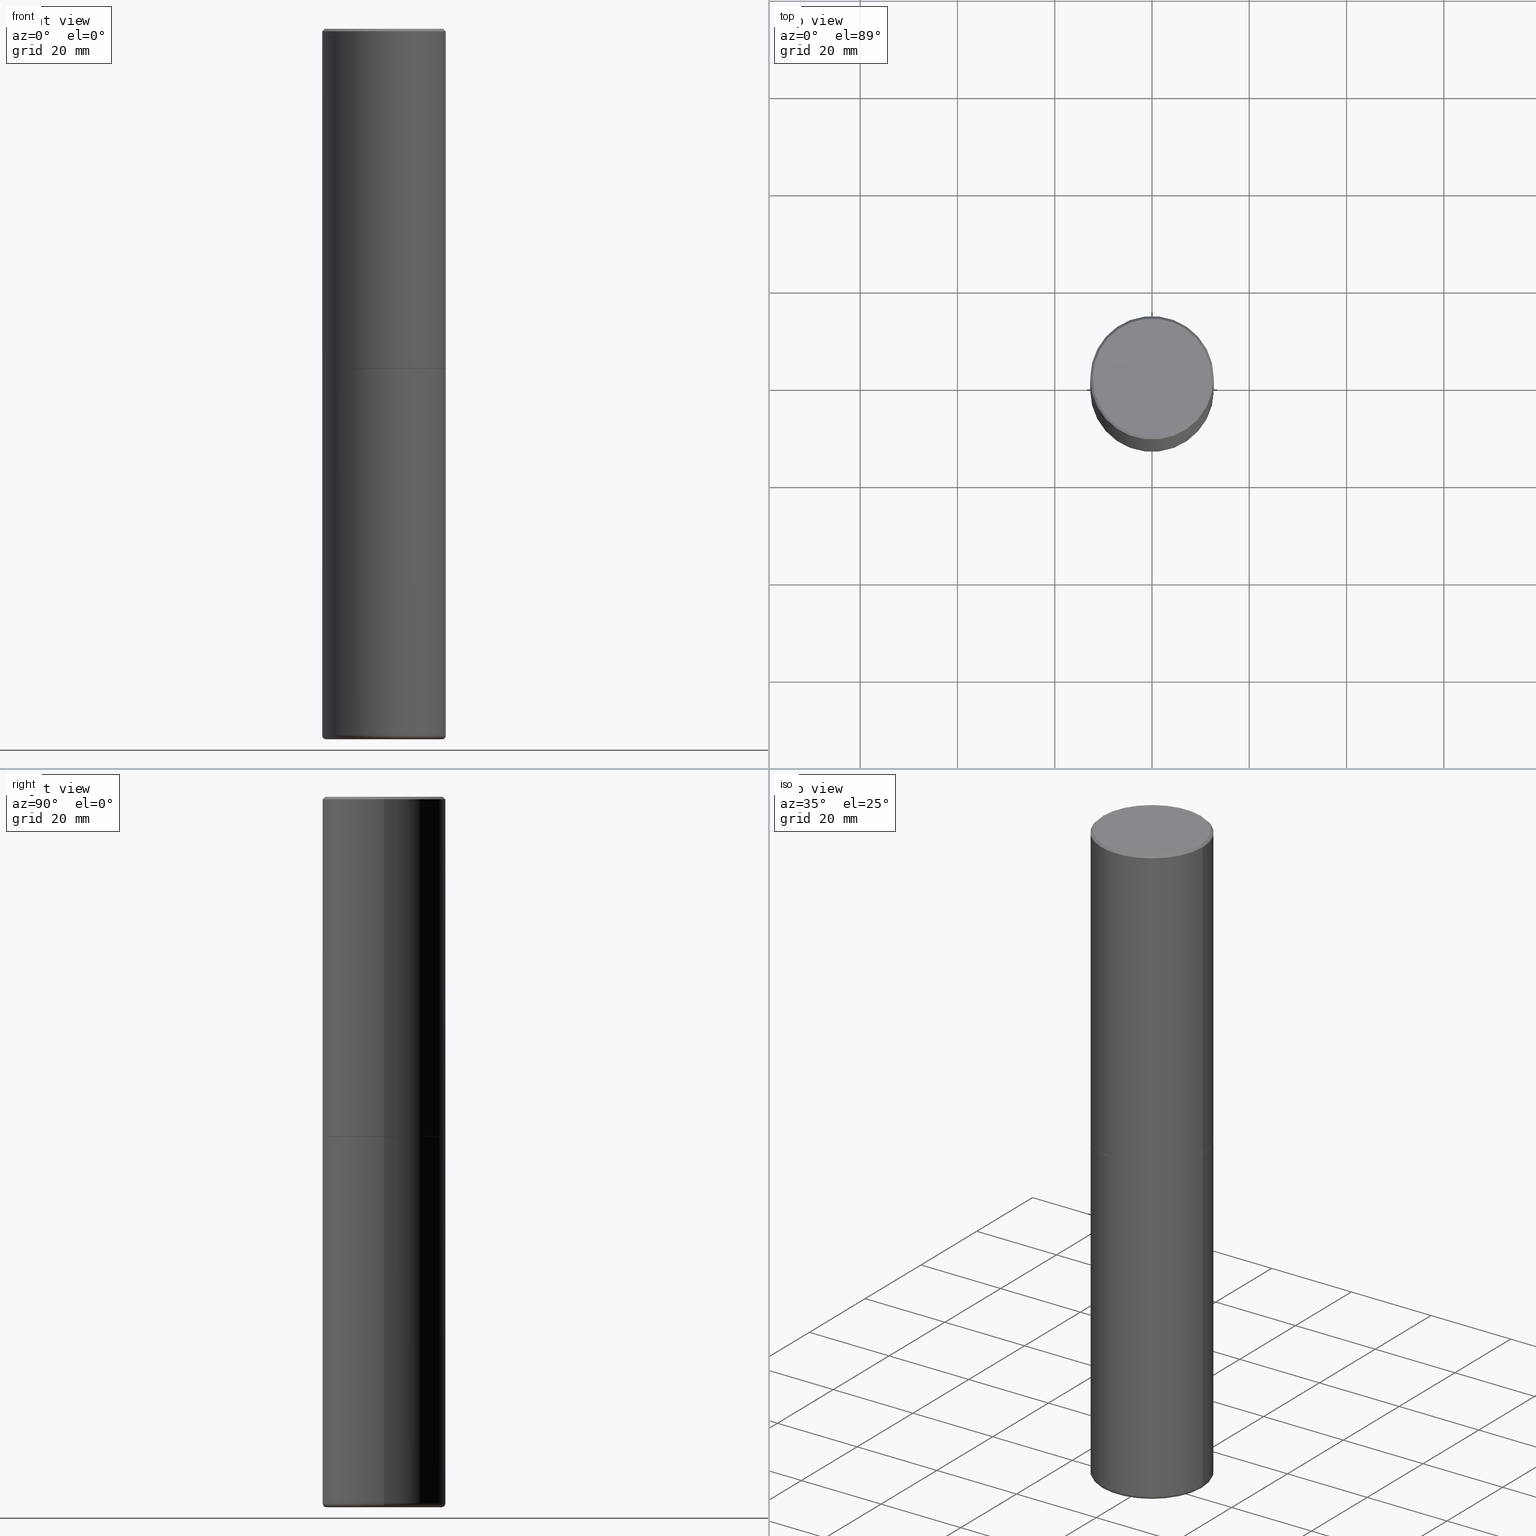
[diagram: canonical four-view strip — front | top / right | iso, engineering-drawing reading convention]
A machine part, canonical four-view strip (front | top / right | iso — engineering-drawing reading convention). The complete STEP part file that produces these views, byte-faithful:
ISO-10303-21;
HEADER;
FILE_DESCRIPTION (( 'STEP AP203' ),
    '1' );
FILE_NAME ('77313.STEP',
    '2024-03-06T17:01:20',
    ( '' ),
    ( '' ),
    'SwSTEP 2.0',
    'SolidWorks 2023',
    '' );
FILE_SCHEMA (( 'CONFIG_CONTROL_DESIGN' ));
ENDSEC;

DATA;
#1 = DIRECTION ( 'NONE',  ( 7.105427357601001859E-15, 1.000000000000000000, -3.491481338843145583E-15 ) ) ;
#2 = ORIENTED_EDGE ( 'NONE', *, *, #356, .F. ) ;
#3 = FACE_OUTER_BOUND ( 'NONE', #270, .T. ) ;
#4 = EDGE_LOOP ( 'NONE', ( #97, #313, #187, #124 ) ) ;
#5 = CIRCLE ( 'NONE', #96, 0.4699999999999999734 ) ;
#6 = ORIENTED_EDGE ( 'NONE', *, *, #139, .F. ) ;
#7 = LINE ( 'NONE', #235, #367 ) ;
#8 = EDGE_CURVE ( 'NONE', #60, #394, #221, .T. ) ;
#9 = AXIS2_PLACEMENT_3D ( 'NONE', #278, #386, #315 ) ;
#10 = AXIS2_PLACEMENT_3D ( 'NONE', #169, #73, #200 ) ;
#11 = CARTESIAN_POINT ( 'NONE',  ( 0.000000000000000000, 0.000000000000000000, 0.000000000000000000 ) ) ;
#12 = CARTESIAN_POINT ( 'NONE',  ( 1.406144563556453319E-28, -2.007601769834808306E-14, -5.749999999999998224 ) ) ;
#13 = DIRECTION ( 'NONE',  ( 1.000000000000000000, -6.982962677686271444E-15, 0.000000000000000000 ) ) ;
#14 = ADVANCED_FACE ( 'NONE', ( #3 ), #255, .F. ) ;
#15 = CIRCLE ( 'NONE', #195, 0.4699999999999999734 ) ;
#16 = PRODUCT_DEFINITION_FORMATION_WITH_SPECIFIED_SOURCE ( 'ANY', '', #377, .NOT_KNOWN. ) ;
#17 = CARTESIAN_POINT ( 'NONE',  ( 6.722593748202938917E-29, -9.598082200479805274E-15, -2.748999999999999666 ) ) ;
#18 = MANIFOLD_SOLID_BREP ( 'Body-Move/Copy2[2]', #111 ) ;
#19 = APPROVAL_DATE_TIME ( #150, #171 ) ;
#20 = VECTOR ( 'NONE', #117, 39.37007874015748143 ) ;
#21 = DATE_AND_TIME ( #121, #227 ) ;
#22 = DATE_TIME_ROLE ( 'creation_date' ) ;
#23 = ORIENTED_EDGE ( 'NONE', *, *, #296, .T. ) ;
#24 = CARTESIAN_POINT ( 'NONE',  ( -0.5000000000000000000, 3.552713678800500929E-15, -2.459467545127452891E-29 ) ) ;
#25 = DIRECTION ( 'NONE',  ( 2.445468806185136597E-29, -3.491481338843145583E-15, -1.000000000000000000 ) ) ;
#26 = PERSON_AND_ORGANIZATION_ROLE ( 'creator' ) ;
#27 = AXIS2_PLACEMENT_3D ( 'NONE', #401, #294, #231 ) ;
#28 = CALENDAR_DATE ( 2024, 6, 3 ) ;
#29 = CARTESIAN_POINT ( 'NONE',  ( 0.4699999999999999734, -2.325326571669532999E-14, -5.719999999999998863 ) ) ;
#30 = ORIENTED_EDGE ( 'NONE', *, *, #403, .T. ) ;
#31 = PRODUCT_RELATED_PRODUCT_CATEGORY ( 'detail', '', ( #377 ) ) ;
#32 = ORIENTED_EDGE ( 'NONE', *, *, #415, .F. ) ;
#33 = EDGE_LOOP ( 'NONE', ( #51, #340, #366, #45 ) ) ;
#34 = AXIS2_PLACEMENT_3D ( 'NONE', #236, #408, #373 ) ;
#35 = DIRECTION ( 'NONE',  ( 1.000000000000000000, -6.982962677686265922E-15, 0.000000000000000000 ) ) ;
#36 = PERSON_AND_ORGANIZATION ( #166, #90 ) ;
#37 = EDGE_CURVE ( 'NONE', #360, #382, #353, .T. ) ;
#38 = AXIS2_PLACEMENT_3D ( 'NONE', #230, #43, #297 ) ;
#39 = VECTOR ( 'NONE', #244, 39.37007874015748143 ) ;
#40 = DIRECTION ( 'NONE',  ( -2.445468806185136877E-29, 3.491481338843145188E-15, 1.000000000000000000 ) ) ;
#41 = DIRECTION ( 'NONE',  ( 1.000000000000000000, -6.982962677686266711E-15, 4.883557194083112901E-29 ) ) ;
#42 = CARTESIAN_POINT ( 'NONE',  ( 0.000000000000000000, 0.000000000000000000, 0.000000000000000000 ) ) ;
#43 = DIRECTION ( 'NONE',  ( -2.445468806185136597E-29, 3.491481338843145583E-15, 1.000000000000000000 ) ) ;
#44 = ADVANCED_FACE ( 'NONE', ( #289 ), #138, .T. ) ;
#45 = ORIENTED_EDGE ( 'NONE', *, *, #92, .F. ) ;
#46 = ORIENTED_EDGE ( 'NONE', *, *, #232, .F. ) ;
#47 =( GEOMETRIC_REPRESENTATION_CONTEXT ( 3 ) GLOBAL_UNCERTAINTY_ASSIGNED_CONTEXT ( ( #222 ) ) GLOBAL_UNIT_ASSIGNED_CONTEXT ( ( #327, #359, #238 ) ) REPRESENTATION_CONTEXT ( 'NONE', 'WORKASPACE' ) );
#48 = CARTESIAN_POINT ( 'NONE',  ( -0.4989999999999999991, -6.050666976027525169E-15, -2.749999999999999556 ) ) ;
#49 = CARTESIAN_POINT ( 'NONE',  ( 0.5000000000000002220, -3.491481338843134933E-15, 2.438088387897969017E-29 ) ) ;
#50 = DIRECTION ( 'NONE',  ( -2.445468806185136597E-29, 3.491481338843145583E-15, 1.000000000000000000 ) ) ;
#51 = ORIENTED_EDGE ( 'NONE', *, *, #403, .F. ) ;
#52 = AXIS2_PLACEMENT_3D ( 'NONE', #53, #147, #174 ) ;
#53 = CARTESIAN_POINT ( 'NONE',  ( 1.398808157137897855E-28, -1.997127325818278653E-14, -5.719999999999998863 ) ) ;
#54 = VERTEX_POINT ( 'NONE', #333 ) ;
#55 = CARTESIAN_POINT ( 'NONE',  ( 6.725039217009123399E-29, -9.601573681818648281E-15, -2.749999999999999556 ) ) ;
#56 = CALENDAR_DATE ( 2024, 6, 3 ) ;
#57 = CARTESIAN_POINT ( 'NONE',  ( 0.4989999999999999991, -1.308607205798409720E-14, -2.749999999999999556 ) ) ;
#58 = VERTEX_POINT ( 'NONE', #365 ) ;
#59 = EDGE_CURVE ( 'NONE', #136, #394, #338, .T. ) ;
#60 = VERTEX_POINT ( 'NONE', #105 ) ;
#61 = ORIENTED_EDGE ( 'NONE', *, *, #8, .T. ) ;
#62 = ORIENTED_EDGE ( 'NONE', *, *, #309, .T. ) ;
#63 = ORIENTED_EDGE ( 'NONE', *, *, #186, .F. ) ;
#64 = DIRECTION ( 'NONE',  ( 0.7071067811867406405, -2.468850131084279700E-15, 0.7071067811863543939 ) ) ;
#65 = EDGE_CURVE ( 'NONE', #132, #347, #15, .T. ) ;
#66 = AXIS2_PLACEMENT_3D ( 'NONE', #102, #295, #369 ) ;
#67 = CC_DESIGN_APPROVAL ( #252, ( #16 ) ) ;
#68 = DIRECTION ( 'NONE',  ( -2.445468806185136597E-29, 3.491481338843145583E-15, 1.000000000000000000 ) ) ;
#69 = LOCAL_TIME ( 12, 1, 20.00000000000000000, #146 ) ;
#70 = CC_DESIGN_PERSON_AND_ORGANIZATION_ASSIGNMENT ( #312, #26, ( #16 ) ) ;
#71 = DIRECTION ( 'NONE',  ( -2.445468806185136597E-29, 3.491481338843145583E-15, 1.000000000000000000 ) ) ;
#72 = ORIENTED_EDGE ( 'NONE', *, *, #229, .F. ) ;
#73 = DIRECTION ( 'NONE',  ( 2.438088387897960049E-29, -3.491481338843145188E-15, -1.000000000000000000 ) ) ;
#74 = CC_DESIGN_PERSON_AND_ORGANIZATION_ASSIGNMENT ( #87, #385, ( #383 ) ) ;
#75 = DESIGN_CONTEXT ( 'detailed design', #361, 'design' ) ;
#76 = VECTOR ( 'NONE', #79, 39.37007874015748143 ) ;
#77 = DIRECTION ( 'NONE',  ( -2.445468806185136597E-29, 3.491481338843145583E-15, 1.000000000000000000 ) ) ;
#78 = EDGE_LOOP ( 'NONE', ( #345, #30, #32, #72 ) ) ;
#79 = DIRECTION ( 'NONE',  ( -0.7071067811867406405, 7.493145998871051513E-15, 0.7071067811863543939 ) ) ;
#80 = DIRECTION ( 'NONE',  ( -2.438088387897960049E-29, 3.491481338843145188E-15, 1.000000000000000000 ) ) ;
#81 = CARTESIAN_POINT ( 'NONE',  ( -0.5000000000000001110, 3.421651712066270452E-15, -0.02000000000000010797 ) ) ;
#82 = VERTEX_POINT ( 'NONE', #268 ) ;
#83 = EDGE_CURVE ( 'NONE', #54, #156, #135, .T. ) ;
#84 = AXIS2_PLACEMENT_3D ( 'NONE', #17, #348, #301 ) ;
#85 = DIRECTION ( 'NONE',  ( -2.445468806185136597E-29, 3.491481338843145583E-15, 1.000000000000000000 ) ) ;
#86 = DATE_AND_TIME ( #176, #388 ) ;
#87 = PERSON_AND_ORGANIZATION ( #166, #90 ) ;
#88 = VERTEX_POINT ( 'NONE', #162 ) ;
#89 = CIRCLE ( 'NONE', #331, 0.02999999999999974909 ) ;
#90 = ORGANIZATION ( 'UNSPECIFIED', 'UNSPECIFIED', '' ) ;
#91 = CC_DESIGN_SECURITY_CLASSIFICATION ( #293, ( #16 ) ) ;
#92 = EDGE_CURVE ( 'NONE', #82, #418, #179, .T. ) ;
#93 = ORIENTED_EDGE ( 'NONE', *, *, #116, .F. ) ;
#94 = APPROVAL_ROLE ( '' ) ;
#95 = ORIENTED_EDGE ( 'NONE', *, *, #59, .T. ) ;
#96 = AXIS2_PLACEMENT_3D ( 'NONE', #349, #302, #341 ) ;
#97 = ORIENTED_EDGE ( 'NONE', *, *, #296, .F. ) ;
#98 = CARTESIAN_POINT ( 'NONE',  ( 0.000000000000000000, 0.000000000000000000, 0.000000000000000000 ) ) ;
#99 = CYLINDRICAL_SURFACE ( 'NONE', #153, 0.5000000000000000000 ) ;
#100 = FACE_OUTER_BOUND ( 'NONE', #260, .T. ) ;
#101 = ADVANCED_FACE ( 'NONE', ( #198 ), #298, .T. ) ;
#102 = CARTESIAN_POINT ( 'NONE',  ( 4.890937612370299433E-31, -6.982962677686328587E-17, -0.02000000000000010797 ) ) ;
#103 = CLOSED_SHELL ( 'NONE', ( #336, #101, #390, #44, #285, #192 ) ) ;
#104 = AXIS2_PLACEMENT_3D ( 'NONE', #131, #108, #258 ) ;
#105 = CARTESIAN_POINT ( 'NONE',  ( 0.4999999999999998335, -2.346275459702591989E-14, -5.719999999999998863 ) ) ;
#106 = FACE_OUTER_BOUND ( 'NONE', #371, .T. ) ;
#107 = ADVANCED_FACE ( 'NONE', ( #100 ), #395, .T. ) ;
#108 = DIRECTION ( 'NONE',  ( -2.445468806185136597E-29, 3.491481338843145583E-15, 1.000000000000000000 ) ) ;
#109 = LINE ( 'NONE', #280, #76 ) ;
#110 = DIRECTION ( 'NONE',  ( 0.000000000000000000, 0.000000000000000000, 1.000000000000000000 ) ) ;
#111 = CLOSED_SHELL ( 'NONE', ( #107, #214, #175, #363, #163, #267, #352, #14 ) ) ;
#112 = LINE ( 'NONE', #81, #299 ) ;
#113 = PERSON_AND_ORGANIZATION ( #166, #90 ) ;
#114 = CARTESIAN_POINT ( 'NONE',  ( 6.725039217009123399E-29, -9.601573681818648281E-15, -2.749999999999999556 ) ) ;
#115 = DIRECTION ( 'NONE',  ( 1.000000000000000000, -6.982962677686269077E-15, 0.000000000000000000 ) ) ;
#116 = EDGE_CURVE ( 'NONE', #60, #148, #226, .T. ) ;
#117 = DIRECTION ( 'NONE',  ( -2.445468806185136877E-29, 3.491481338843145188E-15, 1.000000000000000000 ) ) ;
#118 = ORIENTED_EDGE ( 'NONE', *, *, #92, .T. ) ;
#119 = APPROVAL_ROLE ( '' ) ;
#120 = APPROVAL ( #210, 'UNSPECIFIED' ) ;
#121 = CALENDAR_DATE ( 2024, 6, 3 ) ;
#122 = ORIENTED_EDGE ( 'NONE', *, *, #65, .F. ) ;
#123 = CARTESIAN_POINT ( 'NONE',  ( 0.4799999999999999267, -3.396558832296482099E-15, 1.195183497228351200E-16 ) ) ;
#124 = ORIENTED_EDGE ( 'NONE', *, *, #309, .F. ) ;
#125 = EDGE_LOOP ( 'NONE', ( #307, #223, #6, #355 ) ) ;
#126 = CONICAL_SURFACE ( 'NONE', #316, 0.4989999999999999991, 0.7853981633977213939 ) ;
#127 = ORIENTED_EDGE ( 'NONE', *, *, #149, .F. ) ;
#128 = ORIENTED_EDGE ( 'NONE', *, *, #158, .F. ) ;
#129 = LINE ( 'NONE', #57, #211 ) ;
#130 = CC_DESIGN_PERSON_AND_ORGANIZATION_ASSIGNMENT ( #154, #281, ( #293 ) ) ;
#131 = CARTESIAN_POINT ( 'NONE',  ( 4.890937612370299433E-31, -6.982962677686328587E-17, -0.02000000000000010797 ) ) ;
#132 = VERTEX_POINT ( 'NONE', #216 ) ;
#133 = CARTESIAN_POINT ( 'NONE',  ( 2.339670157939436804E-28, -6.707399857012327486E-15, -5.749999999999998224 ) ) ;
#134 = CARTESIAN_POINT ( 'NONE',  ( 3.351822085289407153E-15, 0.4799999999999999267, -1.616151867783303914E-15 ) ) ;
#135 = CIRCLE ( 'NONE', #247, 0.4799999999999999267 ) ;
#136 = VERTEX_POINT ( 'NONE', #178 ) ;
#137 = CONICAL_SURFACE ( 'NONE', #339, 0.5000000000000001110, 0.7853981633974458365 ) ;
#138 = CYLINDRICAL_SURFACE ( 'NONE', #407, 0.5000000000000000000 ) ;
#139 = EDGE_CURVE ( 'NONE', #394, #136, #372, .T. ) ;
#140 = DIRECTION ( 'NONE',  ( 1.000000000000000000, -6.982962677686266711E-15, 4.876176775795935793E-29 ) ) ;
#141 = DIRECTION ( 'NONE',  ( -2.445468806185136597E-29, 3.491481338843145583E-15, 1.000000000000000000 ) ) ;
#142 = LOCAL_TIME ( 12, 1, 20.00000000000000000, #225 ) ;
#143 = CARTESIAN_POINT ( 'NONE',  ( -0.4699999999999999734, -1.657751320982894820E-14, -5.749999999999998224 ) ) ;
#144 = APPLICATION_PROTOCOL_DEFINITION ( 'international standard', 'config_control_design', 1994, #361 ) ;
#145 = FACE_OUTER_BOUND ( 'NONE', #397, .T. ) ;
#146 = COORDINATED_UNIVERSAL_TIME_OFFSET ( 5, 0, .BEHIND. ) ;
#147 = DIRECTION ( 'NONE',  ( -2.445468806185136597E-29, 3.491481338843145583E-15, 1.000000000000000000 ) ) ;
#148 = VERTEX_POINT ( 'NONE', #151 ) ;
#149 = EDGE_CURVE ( 'NONE', #132, #60, #237, .T. ) ;
#150 = DATE_AND_TIME ( #56, #142 ) ;
#151 = CARTESIAN_POINT ( 'NONE',  ( -0.4999999999999998335, -1.641855957938228876E-14, -5.719999999999998863 ) ) ;
#152 = EDGE_CURVE ( 'NONE', #347, #148, #89, .T. ) ;
#153 = AXIS2_PLACEMENT_3D ( 'NONE', #206, #77, #411 ) ;
#154 = PERSON_AND_ORGANIZATION ( #166, #90 ) ;
#155 = DIRECTION ( 'NONE',  ( 1.000000000000000000, -6.982962677686326664E-15, 0.000000000000000000 ) ) ;
#156 = VERTEX_POINT ( 'NONE', #123 ) ;
#157 = DIRECTION ( 'NONE',  ( 1.000000000000000000, -6.982962677686269077E-15, 0.000000000000000000 ) ) ;
#158 = EDGE_CURVE ( 'NONE', #88, #58, #189, .T. ) ;
#159 = DIRECTION ( 'NONE',  ( 1.000000000000000000, 0.000000000000000000, 0.000000000000000000 ) ) ;
#160 = MANIFOLD_SOLID_BREP ( 'Body-Move/Copy2[1]', #103 ) ;
#161 = DIRECTION ( 'NONE',  ( -2.445468806185136597E-29, 3.491481338843145583E-15, 1.000000000000000000 ) ) ;
#162 = CARTESIAN_POINT ( 'NONE',  ( 0.5000000000000003331, -1.308956353932294179E-14, -2.748999999999999666 ) ) ;
#163 = ADVANCED_FACE ( 'NONE', ( #190 ), #335, .T. ) ;
#164 = ORIENTED_EDGE ( 'NONE', *, *, #37, .F. ) ;
#165 = CIRCLE ( 'NONE', #34, 0.4799999999999999267 ) ;
#166 = PERSON ( 'UNSPECIFIED', 'UNSPECIFIED', 'UNSPECIFIED', ('UNSPECIFIED'), ('UNSPECIFIED'), ('UNSPECIFIED') ) ;
#167 = PLANE ( 'NONE',  #282 ) ;
#168 = ORIENTED_EDGE ( 'NONE', *, *, #410, .F. ) ;
#169 = CARTESIAN_POINT ( 'NONE',  ( 6.725039217009123399E-29, -9.601573681818648281E-15, -2.749999999999999556 ) ) ;
#170 = APPROVAL_STATUS ( 'not_yet_approved' ) ;
#171 = APPROVAL ( #393, 'UNSPECIFIED' ) ;
#172 = PERSON_AND_ORGANIZATION ( #166, #90 ) ;
#173 = AXIS2_PLACEMENT_3D ( 'NONE', #277, #85, #213 ) ;
#174 = DIRECTION ( 'NONE',  ( 1.000000000000000000, -6.982962677686266711E-15, 4.883557194083112901E-29 ) ) ;
#175 = ADVANCED_FACE ( 'NONE', ( #402 ), #137, .T. ) ;
#176 = CALENDAR_DATE ( 2024, 6, 3 ) ;
#177 = EDGE_CURVE ( 'NONE', #156, #418, #304, .T. ) ;
#178 = CARTESIAN_POINT ( 'NONE',  ( -0.5000000000000000000, -1.123370979120021648E-14, -2.749999999999999556 ) ) ;
#179 = CIRCLE ( 'NONE', #66, 0.5000000000000001110 ) ;
#180 = TOROIDAL_SURFACE ( 'NONE', #52, 0.4699999999999999734, 0.02999999999999974909 ) ;
#181 = EDGE_LOOP ( 'NONE', ( #164, #188 ) ) ;
#182 = DIRECTION ( 'NONE',  ( -1.000000000000000000, 6.982962677686265922E-15, -4.876176775795935793E-29 ) ) ;
#183 = ORIENTED_EDGE ( 'NONE', *, *, #65, .T. ) ;
#184 = CARTESIAN_POINT ( 'NONE',  ( 0.5000000000000000000, -3.491481338843133355E-15, 2.438088387897967896E-29 ) ) ;
#185 = EDGE_LOOP ( 'NONE', ( #334, #219, #62, #118 ) ) ;
#186 = EDGE_CURVE ( 'NONE', #360, #88, #129, .T. ) ;
#187 = ORIENTED_EDGE ( 'NONE', *, *, #415, .T. ) ;
#188 = ORIENTED_EDGE ( 'NONE', *, *, #330, .F. ) ;
#189 = CIRCLE ( 'NONE', #322, 0.5000000000000003331 ) ;
#190 = FACE_OUTER_BOUND ( 'NONE', #33, .T. ) ;
#191 = DIRECTION ( 'NONE',  ( -2.445468806185136597E-29, 3.491481338843145583E-15, 1.000000000000000000 ) ) ;
#192 = ADVANCED_FACE ( 'NONE', ( #257 ), #392, .T. ) ;
#193 = ORIENTED_EDGE ( 'NONE', *, *, #259, .F. ) ;
#194 = DIRECTION ( 'NONE',  ( -2.445468806185136597E-29, 3.491481338843145583E-15, 1.000000000000000000 ) ) ;
#195 = AXIS2_PLACEMENT_3D ( 'NONE', #12, #141, #13 ) ;
#196 = CC_DESIGN_APPROVAL ( #120, ( #293 ) ) ;
#197 = APPLICATION_CONTEXT ( 'configuration controlled 3d designs of mechanical parts and assemblies' ) ;
#198 = FACE_OUTER_BOUND ( 'NONE', #391, .T. ) ;
#199 = CC_DESIGN_DATE_AND_TIME_ASSIGNMENT ( #344, #22, ( #383 ) ) ;
#200 = DIRECTION ( 'NONE',  ( -1.000000000000000000, 6.982962677686265922E-15, -4.876176775795935793E-29 ) ) ;
#201 =( LENGTH_UNIT ( ) NAMED_UNIT ( * ) SI_UNIT ( $, .METRE. ) );
#202 = EDGE_LOOP ( 'NONE', ( #314, #400, #287, #2 ) ) ;
#203 = CARTESIAN_POINT ( 'NONE',  ( 0.4989999999999999991, -1.308607205798409720E-14, -2.749999999999999556 ) ) ;
#204 = APPROVAL_DATE_TIME ( #217, #252 ) ;
#205 = CARTESIAN_POINT ( 'NONE',  ( 6.722593748202938917E-29, -9.598082200479805274E-15, -2.748999999999999666 ) ) ;
#206 = CARTESIAN_POINT ( 'NONE',  ( 0.000000000000000000, 0.000000000000000000, 0.000000000000000000 ) ) ;
#207 = CARTESIAN_POINT ( 'NONE',  ( 6.725039217009123399E-29, -9.601573681818648281E-15, -2.749999999999999556 ) ) ;
#208 = CARTESIAN_POINT ( 'NONE',  ( 4.890937612370299433E-31, -6.982962677686328587E-17, -0.02000000000000010797 ) ) ;
#209 = LINE ( 'NONE', #49, #20 ) ;
#210 = APPROVAL_STATUS ( 'not_yet_approved' ) ;
#211 = VECTOR ( 'NONE', #64, 39.37007874015748143 ) ;
#212 = FACE_OUTER_BOUND ( 'NONE', #185, .T. ) ;
#213 = DIRECTION ( 'NONE',  ( 1.000000000000000000, -6.982962677686266711E-15, 4.876176775795935793E-29 ) ) ;
#214 = ADVANCED_FACE ( 'NONE', ( #318 ), #370, .T. ) ;
#215 = DATE_TIME_ROLE ( 'classification_date' ) ;
#216 = CARTESIAN_POINT ( 'NONE',  ( 0.4699999999999999734, -2.335801015686062967E-14, -5.749999999999998224 ) ) ;
#217 = DATE_AND_TIME ( #28, #69 ) ;
#218 = DIRECTION ( 'NONE',  ( -6.982962677686266711E-15, -1.000000000000000000, 3.491481338843145583E-15 ) ) ;
#219 = ORIENTED_EDGE ( 'NONE', *, *, #83, .F. ) ;
#220 = AXIS2_PLACEMENT_3D ( 'NONE', #290, #300, #272 ) ;
#221 = LINE ( 'NONE', #184, #253 ) ;
#222 = UNCERTAINTY_MEASURE_WITH_UNIT (LENGTH_MEASURE( 1.000000000000000082E-05 ), #327, 'distance_accuracy_value', 'NONE');
#223 = ORIENTED_EDGE ( 'NONE', *, *, #259, .T. ) ;
#224 = EDGE_LOOP ( 'NONE', ( #193, #319, #61, #350 ) ) ;
#225 = COORDINATED_UNIVERSAL_TIME_OFFSET ( 5, 0, .BEHIND. ) ;
#226 = CIRCLE ( 'NONE', #262, 0.5000000000000001110 ) ;
#227 = LOCAL_TIME ( 12, 1, 20.00000000000000000, #351 ) ;
#228 = EDGE_LOOP ( 'NONE', ( #122, #46 ) ) ;
#229 = EDGE_CURVE ( 'NONE', #88, #418, #209, .T. ) ;
#230 = CARTESIAN_POINT ( 'NONE',  ( 6.725039217009123399E-29, -9.601573681818648281E-15, -2.749999999999999556 ) ) ;
#231 = DIRECTION ( 'NONE',  ( 1.000000000000000000, -6.982962677686269077E-15, 0.000000000000000000 ) ) ;
#232 = EDGE_CURVE ( 'NONE', #347, #132, #5, .T. ) ;
#233 = CARTESIAN_POINT ( 'NONE',  ( -2.922783960138615261E-45, 4.172960877065252270E-31, 1.195183497228115035E-16 ) ) ;
#234 = PLANE ( 'NONE',  #10 ) ;
#235 = CARTESIAN_POINT ( 'NONE',  ( -0.5000000000000002220, 3.552713678800502507E-15, -2.459467545127454012E-29 ) ) ;
#236 = CARTESIAN_POINT ( 'NONE',  ( -2.922783960138615261E-45, 4.172960877065252270E-31, 1.195183497228115035E-16 ) ) ;
#237 = CIRCLE ( 'NONE', #273, 0.02999999999999974909 ) ;
#238 =( NAMED_UNIT ( * ) SI_UNIT ( $, .STERADIAN. ) SOLID_ANGLE_UNIT ( ) );
#239 = DIRECTION ( 'NONE',  ( -0.7071067811865457964, 2.468850131082238917E-15, -0.7071067811865492381 ) ) ;
#240 = CARTESIAN_POINT ( 'NONE',  ( 4.890937612370299433E-31, -6.982962677686328587E-17, -0.02000000000000010797 ) ) ;
#241 = APPROVAL_DATE_TIME ( #86, #120 ) ;
#242 = DIRECTION ( 'NONE',  ( -1.000000000000000000, 7.105427357600985293E-15, 0.000000000000000000 ) ) ;
#243 = APPROVAL_ROLE ( '' ) ;
#244 = DIRECTION ( 'NONE',  ( -2.445468806185136877E-29, 3.491481338843145188E-15, 1.000000000000000000 ) ) ;
#245 = DIRECTION ( 'NONE',  ( 0.7071067811865457964, -7.319954787623249734E-15, -0.7071067811865492381 ) ) ;
#246 = COORDINATED_UNIVERSAL_TIME_OFFSET ( 5, 0, .BEHIND. ) ;
#247 = AXIS2_PLACEMENT_3D ( 'NONE', #233, #362, #399 ) ;
#248 = APPROVAL_PERSON_ORGANIZATION ( #283, #252, #119 ) ;
#249 = PRODUCT_DEFINITION_SHAPE ( 'NONE', 'NONE',  #383 ) ;
#250 = ORIENTED_EDGE ( 'NONE', *, *, #256, .T. ) ;
#251 = DIRECTION ( 'NONE',  ( 1.000000000000000000, -6.982962677686269077E-15, 0.000000000000000000 ) ) ;
#252 = APPROVAL ( #170, 'UNSPECIFIED' ) ;
#253 = VECTOR ( 'NONE', #320, 39.37007874015748143 ) ;
#254 = CC_DESIGN_APPROVAL ( #171, ( #383 ) ) ;
#255 = PLANE ( 'NONE',  #380 ) ;
#256 = EDGE_CURVE ( 'NONE', #382, #58, #109, .T. ) ;
#257 = FACE_OUTER_BOUND ( 'NONE', #228, .T. ) ;
#258 = DIRECTION ( 'NONE',  ( 1.000000000000000000, -6.982962677686265922E-15, 0.000000000000000000 ) ) ;
#259 = EDGE_CURVE ( 'NONE', #148, #136, #343, .T. ) ;
#260 = EDGE_LOOP ( 'NONE', ( #368, #250, #128, #63 ) ) ;
#261 = PERSON_AND_ORGANIZATION ( #166, #90 ) ;
#262 = AXIS2_PLACEMENT_3D ( 'NONE', #265, #71, #251 ) ;
#263 = CIRCLE ( 'NONE', #104, 0.5000000000000001110 ) ;
#264 = LENGTH_MEASURE_WITH_UNIT ( LENGTH_MEASURE( 0.02539999999999999897 ), #201 );
#265 = CARTESIAN_POINT ( 'NONE',  ( 1.398808157137897855E-28, -1.997127325818278653E-14, -5.719999999999998863 ) ) ;
#266 = ORIENTED_EDGE ( 'NONE', *, *, #83, .T. ) ;
#267 = ADVANCED_FACE ( 'NONE', ( #416 ), #126, .T. ) ;
#268 = CARTESIAN_POINT ( 'NONE',  ( -0.5000000000000001110, 3.421651712066270452E-15, -0.02000000000000010797 ) ) ;
#269 = AXIS2_PLACEMENT_3D ( 'NONE', #42, #50, #140 ) ;
#270 = EDGE_LOOP ( 'NONE', ( #266, #23 ) ) ;
#271 = CC_DESIGN_PERSON_AND_ORGANIZATION_ASSIGNMENT ( #172, #384, ( #16 ) ) ;
#272 = DIRECTION ( 'NONE',  ( 1.000000000000000000, -6.982962677686269077E-15, 0.000000000000000000 ) ) ;
#273 = AXIS2_PLACEMENT_3D ( 'NONE', #29, #218, #155 ) ;
#274 = SECURITY_CLASSIFICATION_LEVEL ( 'unclassified' ) ;
#275 = CIRCLE ( 'NONE', #305, 0.4989999999999999991 ) ;
#276 = DIRECTION ( 'NONE',  ( -2.445468806185136597E-29, 3.491481338843145583E-15, 1.000000000000000000 ) ) ;
#277 = CARTESIAN_POINT ( 'NONE',  ( 0.000000000000000000, 0.000000000000000000, 0.000000000000000000 ) ) ;
#278 = CARTESIAN_POINT ( 'NONE',  ( 6.725039217009123399E-29, -9.601573681818648281E-15, -2.749999999999999556 ) ) ;
#279 = CC_DESIGN_PERSON_AND_ORGANIZATION_ASSIGNMENT ( #261, #323, ( #377 ) ) ;
#280 = CARTESIAN_POINT ( 'NONE',  ( -0.4989999999999999991, -6.055965430375748360E-15, -2.749999999999999556 ) ) ;
#281 = PERSON_AND_ORGANIZATION_ROLE ( 'classification_officer' ) ;
#282 = AXIS2_PLACEMENT_3D ( 'NONE', #114, #80, #378 ) ;
#283 = PERSON_AND_ORGANIZATION ( #166, #90 ) ;
#284 = CARTESIAN_POINT ( 'NONE',  ( -0.4699999999999999734, -1.663172240011031743E-14, -5.719999999999998863 ) ) ;
#285 = ADVANCED_FACE ( 'NONE', ( #145 ), #180, .T. ) ;
#286 = ORIENTED_EDGE ( 'NONE', *, *, #139, .T. ) ;
#287 = ORIENTED_EDGE ( 'NONE', *, *, #186, .T. ) ;
#288 = CIRCLE ( 'NONE', #220, 0.5000000000000001110 ) ;
#289 = FACE_OUTER_BOUND ( 'NONE', #224, .T. ) ;
#290 = CARTESIAN_POINT ( 'NONE',  ( 1.398808157137897855E-28, -1.997127325818278653E-14, -5.719999999999998863 ) ) ;
#291 = CARTESIAN_POINT ( 'NONE',  ( 6.725039217009123399E-29, -9.601573681818648281E-15, -2.749999999999999556 ) ) ;
#292 = FACE_OUTER_BOUND ( 'NONE', #125, .T. ) ;
#293 = SECURITY_CLASSIFICATION ( '', '', #274 ) ;
#294 = DIRECTION ( 'NONE',  ( -2.445468806185136597E-29, 3.491481338843145583E-15, 1.000000000000000000 ) ) ;
#295 = DIRECTION ( 'NONE',  ( -2.445468806185136597E-29, 3.491481338843145583E-15, 1.000000000000000000 ) ) ;
#296 = EDGE_CURVE ( 'NONE', #156, #54, #165, .T. ) ;
#297 = DIRECTION ( 'NONE',  ( 1.000000000000000000, -6.982962677686266711E-15, 0.000000000000000000 ) ) ;
#298 = TOROIDAL_SURFACE ( 'NONE', #357, 0.4699999999999999734, 0.02999999999999974909 ) ;
#299 = VECTOR ( 'NONE', #239, 39.37007874015748143 ) ;
#300 = DIRECTION ( 'NONE',  ( -2.445468806185136597E-29, 3.491481338843145583E-15, 1.000000000000000000 ) ) ;
#301 = DIRECTION ( 'NONE',  ( 1.000000000000000000, -6.982962677686265922E-15, 0.000000000000000000 ) ) ;
#302 = DIRECTION ( 'NONE',  ( -2.445468806185136597E-29, 3.491481338843145583E-15, 1.000000000000000000 ) ) ;
#303 = FACE_OUTER_BOUND ( 'NONE', #181, .T. ) ;
#304 = LINE ( 'NONE', #412, #358 ) ;
#305 = AXIS2_PLACEMENT_3D ( 'NONE', #207, #276, #115 ) ;
#306 = CALENDAR_DATE ( 2024, 6, 3 ) ;
#307 = ORIENTED_EDGE ( 'NONE', *, *, #116, .T. ) ;
#308 = DIRECTION ( 'NONE',  ( -1.000000000000000000, 6.982962677686265922E-15, 0.000000000000000000 ) ) ;
#309 = EDGE_CURVE ( 'NONE', #54, #82, #112, .T. ) ;
#310 = DIMENSIONAL_EXPONENTS ( 1.000000000000000000, 0.000000000000000000, 0.000000000000000000, 0.000000000000000000, 0.000000000000000000, 0.000000000000000000, 0.000000000000000000 ) ;
#311 = DIRECTION ( 'NONE',  ( 2.445468806185136597E-29, -3.491481338843145583E-15, -1.000000000000000000 ) ) ;
#312 = PERSON_AND_ORGANIZATION ( #166, #90 ) ;
#313 = ORIENTED_EDGE ( 'NONE', *, *, #177, .T. ) ;
#314 = ORIENTED_EDGE ( 'NONE', *, *, #256, .F. ) ;
#315 = DIRECTION ( 'NONE',  ( 1.000000000000000000, -6.982962677686266711E-15, 0.000000000000000000 ) ) ;
#316 = AXIS2_PLACEMENT_3D ( 'NONE', #55, #375, #379 ) ;
#317 = ADVANCED_BREP_SHAPE_REPRESENTATION ( '77313', ( #160, #18, #374 ), #47 ) ;
#318 = FACE_OUTER_BOUND ( 'NONE', #78, .T. ) ;
#319 = ORIENTED_EDGE ( 'NONE', *, *, #410, .T. ) ;
#320 = DIRECTION ( 'NONE',  ( -2.445468806185136877E-29, 3.491481338843145188E-15, 1.000000000000000000 ) ) ;
#321 = DIRECTION ( 'NONE',  ( -1.000000000000000000, 6.982962677686265922E-15, -4.876176775795935793E-29 ) ) ;
#322 = AXIS2_PLACEMENT_3D ( 'NONE', #205, #161, #35 ) ;
#323 = PERSON_AND_ORGANIZATION_ROLE ( 'design_owner' ) ;
#324 = ORIENTED_EDGE ( 'NONE', *, *, #232, .T. ) ;
#325 = ORIENTED_EDGE ( 'NONE', *, *, #149, .T. ) ;
#326 = DIRECTION ( 'NONE',  ( 2.438088387897960049E-29, -3.491481338843145188E-15, -1.000000000000000000 ) ) ;
#327 =( CONVERSION_BASED_UNIT ( 'INCH', #264 ) LENGTH_UNIT ( ) NAMED_UNIT ( #310 ) );
#328 = CARTESIAN_POINT ( 'NONE',  ( 0.5000000000000001110, -3.500078625662629868E-15, -0.02000000000000010797 ) ) ;
#329 = CARTESIAN_POINT ( 'NONE',  ( 1.398808157137897855E-28, -1.997127325818278653E-14, -5.719999999999998863 ) ) ;
#330 = EDGE_CURVE ( 'NONE', #382, #360, #275, .T. ) ;
#331 = AXIS2_PLACEMENT_3D ( 'NONE', #284, #1, #242 ) ;
#332 = LOCAL_TIME ( 12, 1, 20.00000000000000000, #246 ) ;
#333 = CARTESIAN_POINT ( 'NONE',  ( -0.4799999999999999267, 3.386736898677839197E-15, 1.195183497227879609E-16 ) ) ;
#334 = ORIENTED_EDGE ( 'NONE', *, *, #177, .F. ) ;
#335 = CYLINDRICAL_SURFACE ( 'NONE', #269, 0.5000000000000002220 ) ;
#336 = ADVANCED_FACE ( 'NONE', ( #292 ), #99, .T. ) ;
#337 = CARTESIAN_POINT ( 'NONE',  ( 0.5000000000000000000, -1.309305502066178164E-14, -2.749999999999999556 ) ) ;
#338 = CIRCLE ( 'NONE', #38, 0.5000000000000000000 ) ;
#339 = AXIS2_PLACEMENT_3D ( 'NONE', #240, #25, #308 ) ;
#340 = ORIENTED_EDGE ( 'NONE', *, *, #356, .T. ) ;
#341 = DIRECTION ( 'NONE',  ( 1.000000000000000000, -6.982962677686271444E-15, 0.000000000000000000 ) ) ;
#342 = ORIENTED_EDGE ( 'NONE', *, *, #152, .T. ) ;
#343 = LINE ( 'NONE', #24, #39 ) ;
#344 = DATE_AND_TIME ( #306, #332 ) ;
#345 = ORIENTED_EDGE ( 'NONE', *, *, #158, .T. ) ;
#346 = CC_DESIGN_DATE_AND_TIME_ASSIGNMENT ( #21, #215, ( #293 ) ) ;
#347 = VERTEX_POINT ( 'NONE', #143 ) ;
#348 = DIRECTION ( 'NONE',  ( -2.445468806185136597E-29, 3.491481338843145583E-15, 1.000000000000000000 ) ) ;
#349 = CARTESIAN_POINT ( 'NONE',  ( 1.406144563556453319E-28, -2.007601769834808306E-14, -5.749999999999998224 ) ) ;
#350 = ORIENTED_EDGE ( 'NONE', *, *, #59, .F. ) ;
#351 = COORDINATED_UNIVERSAL_TIME_OFFSET ( 5, 0, .BEHIND. ) ;
#352 = ADVANCED_FACE ( 'NONE', ( #303 ), #167, .F. ) ;
#353 = CIRCLE ( 'NONE', #387, 0.4989999999999999991 ) ;
#354 = APPROVAL_PERSON_ORGANIZATION ( #113, #120, #243 ) ;
#355 = ORIENTED_EDGE ( 'NONE', *, *, #8, .F. ) ;
#356 = EDGE_CURVE ( 'NONE', #58, #88, #404, .T. ) ;
#357 = AXIS2_PLACEMENT_3D ( 'NONE', #329, #194, #41 ) ;
#358 = VECTOR ( 'NONE', #245, 39.37007874015748143 ) ;
#359 =( NAMED_UNIT ( * ) PLANE_ANGLE_UNIT ( ) SI_UNIT ( $, .RADIAN. ) );
#360 = VERTEX_POINT ( 'NONE', #203 ) ;
#361 = APPLICATION_CONTEXT ( 'configuration controlled 3d designs of mechanical parts and assemblies' ) ;
#362 = DIRECTION ( 'NONE',  ( -2.445468806185136597E-29, 3.491481338843145583E-15, 1.000000000000000000 ) ) ;
#363 = ADVANCED_FACE ( 'NONE', ( #212 ), #381, .T. ) ;
#364 = MECHANICAL_CONTEXT ( 'NONE', #197, 'mechanical' ) ;
#365 = CARTESIAN_POINT ( 'NONE',  ( -0.5000000000000003331, -1.281242234827830793E-15, -2.748999999999999666 ) ) ;
#366 = ORIENTED_EDGE ( 'NONE', *, *, #229, .T. ) ;
#367 = VECTOR ( 'NONE', #40, 39.37007874015748143 ) ;
#368 = ORIENTED_EDGE ( 'NONE', *, *, #37, .T. ) ;
#369 = DIRECTION ( 'NONE',  ( 1.000000000000000000, -6.982962677686265922E-15, 0.000000000000000000 ) ) ;
#370 = CYLINDRICAL_SURFACE ( 'NONE', #173, 0.5000000000000002220 ) ;
#371 = EDGE_LOOP ( 'NONE', ( #286, #95 ) ) ;
#372 = CIRCLE ( 'NONE', #9, 0.5000000000000000000 ) ;
#373 = DIRECTION ( 'NONE',  ( 1.000000000000000000, -6.982962677686266711E-15, 4.874852205035277589E-29 ) ) ;
#374 = AXIS2_PLACEMENT_3D ( 'NONE', #98, #110, #159 ) ;
#375 = DIRECTION ( 'NONE',  ( -2.445468806185136597E-29, 3.491481338843145583E-15, 1.000000000000000000 ) ) ;
#376 = SHAPE_DEFINITION_REPRESENTATION ( #249, #317 ) ;
#377 = PRODUCT ( '77313', '77313', '', ( #364 ) ) ;
#378 = DIRECTION ( 'NONE',  ( 1.000000000000000000, -6.982962677686265922E-15, 4.876176775795935793E-29 ) ) ;
#379 = DIRECTION ( 'NONE',  ( 1.000000000000000000, -6.982962677686269077E-15, 0.000000000000000000 ) ) ;
#380 = AXIS2_PLACEMENT_3D ( 'NONE', #134, #389, #321 ) ;
#381 = CONICAL_SURFACE ( 'NONE', #409, 0.5000000000000001110, 0.7853981633974458365 ) ;
#382 = VERTEX_POINT ( 'NONE', #48 ) ;
#383 = PRODUCT_DEFINITION ( 'UNKNOWN', '', #16, #75 ) ;
#384 = PERSON_AND_ORGANIZATION_ROLE ( 'design_supplier' ) ;
#385 = PERSON_AND_ORGANIZATION_ROLE ( 'creator' ) ;
#386 = DIRECTION ( 'NONE',  ( -2.445468806185136597E-29, 3.491481338843145583E-15, 1.000000000000000000 ) ) ;
#387 = AXIS2_PLACEMENT_3D ( 'NONE', #291, #191, #157 ) ;
#388 = LOCAL_TIME ( 12, 1, 20.00000000000000000, #413 ) ;
#389 = DIRECTION ( 'NONE',  ( 2.438088387897960049E-29, -3.491481338843145188E-15, -1.000000000000000000 ) ) ;
#390 = ADVANCED_FACE ( 'NONE', ( #106 ), #234, .F. ) ;
#391 = EDGE_LOOP ( 'NONE', ( #183, #342, #93, #127 ) ) ;
#392 = PLANE ( 'NONE',  #396 ) ;
#393 = APPROVAL_STATUS ( 'not_yet_approved' ) ;
#394 = VERTEX_POINT ( 'NONE', #337 ) ;
#395 = CONICAL_SURFACE ( 'NONE', #27, 0.4989999999999999991, 0.7853981633977213939 ) ;
#396 = AXIS2_PLACEMENT_3D ( 'NONE', #133, #326, #182 ) ;
#397 = EDGE_LOOP ( 'NONE', ( #414, #324, #325, #168 ) ) ;
#398 = APPLICATION_PROTOCOL_DEFINITION ( 'international standard', 'config_control_design', 1994, #197 ) ;
#399 = DIRECTION ( 'NONE',  ( 1.000000000000000000, -6.982962677686266711E-15, 4.874852205035277589E-29 ) ) ;
#400 = ORIENTED_EDGE ( 'NONE', *, *, #330, .T. ) ;
#401 = CARTESIAN_POINT ( 'NONE',  ( 6.725039217009123399E-29, -9.601573681818648281E-15, -2.749999999999999556 ) ) ;
#402 = FACE_OUTER_BOUND ( 'NONE', #4, .T. ) ;
#403 = EDGE_CURVE ( 'NONE', #58, #82, #7, .T. ) ;
#404 = CIRCLE ( 'NONE', #84, 0.5000000000000003331 ) ;
#405 = DIRECTION ( 'NONE',  ( 1.000000000000000000, -6.982962677686266711E-15, 4.876176775795935793E-29 ) ) ;
#406 = DIRECTION ( 'NONE',  ( -1.000000000000000000, 6.982962677686265922E-15, 0.000000000000000000 ) ) ;
#407 = AXIS2_PLACEMENT_3D ( 'NONE', #11, #68, #405 ) ;
#408 = DIRECTION ( 'NONE',  ( -2.445468806185136597E-29, 3.491481338843145583E-15, 1.000000000000000000 ) ) ;
#409 = AXIS2_PLACEMENT_3D ( 'NONE', #208, #311, #406 ) ;
#410 = EDGE_CURVE ( 'NONE', #148, #60, #288, .T. ) ;
#411 = DIRECTION ( 'NONE',  ( 1.000000000000000000, -6.982962677686266711E-15, 4.876176775795935793E-29 ) ) ;
#412 = CARTESIAN_POINT ( 'NONE',  ( 0.5000000000000001110, -3.500078625662629868E-15, -0.02000000000000010797 ) ) ;
#413 = COORDINATED_UNIVERSAL_TIME_OFFSET ( 5, 0, .BEHIND. ) ;
#414 = ORIENTED_EDGE ( 'NONE', *, *, #152, .F. ) ;
#415 = EDGE_CURVE ( 'NONE', #418, #82, #263, .T. ) ;
#416 = FACE_OUTER_BOUND ( 'NONE', #202, .T. ) ;
#417 = APPROVAL_PERSON_ORGANIZATION ( #36, #171, #94 ) ;
#418 = VERTEX_POINT ( 'NONE', #328 ) ;
ENDSEC;
END-ISO-10303-21;
